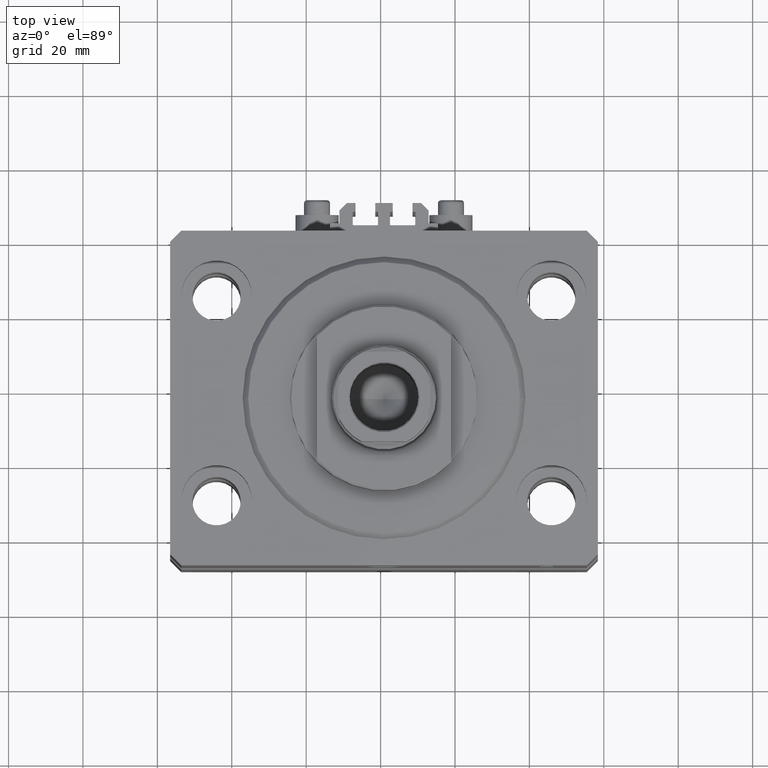
[diagram: clean part render]
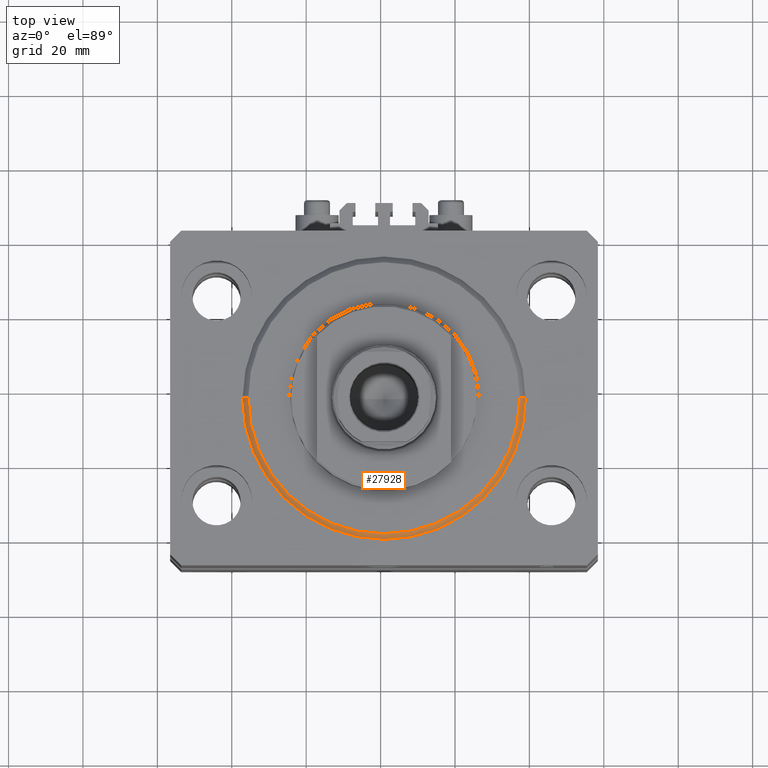
[diagram: same view with one face highlighted and labeled with its STEP entity id]
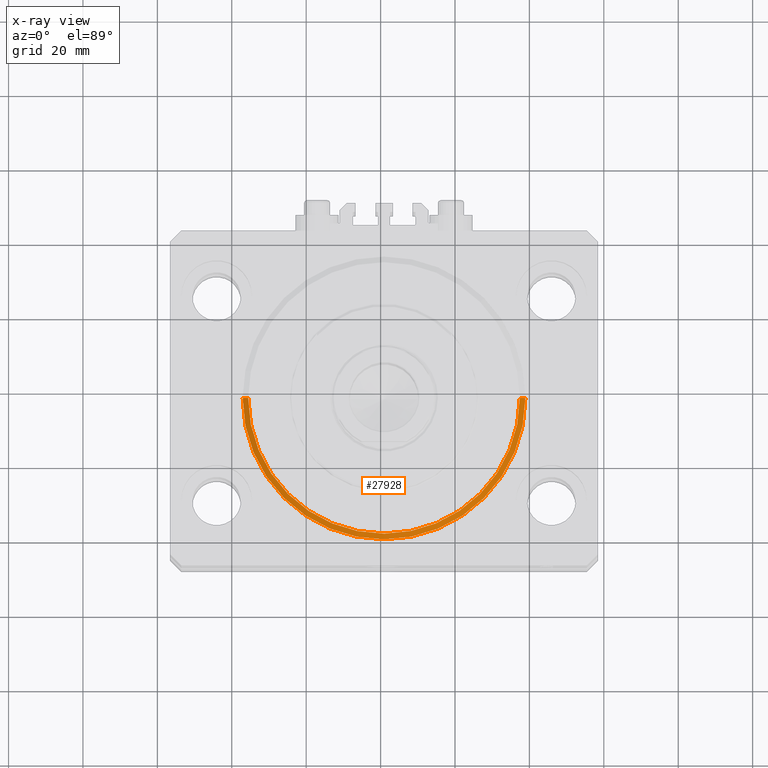
[diagram: x-ray of the same camera — body ghosted, the highlighted face saturated]
A machine part, top view. The second image highlights one B-rep face of the part: STEP entity #27928.
The next image is the same camera in x-ray: the body ghosted, the highlighted face saturated — about 0% of this face is hidden behind the body in this view.
In plain terms, the highlighted conical surface has half-angle 45 deg.
Its self-contained STEP definition (entity closure, byte-faithful):
#2314 = DIRECTION ( 'NONE',  ( -0.000000000000000000, -0.000000000000000000, -1.000000000000000000 ) ) ;
#5760 = DIRECTION ( 'NONE',  ( 1.000000000000000000, 0.000000000000000000, 0.000000000000000000 ) ) ;
#7535 = CARTESIAN_POINT ( 'NONE',  ( 0.000000000000000000, 0.000000000000000000, 1.499999999999994449 ) ) ;
#8592 = ORIENTED_EDGE ( 'NONE', *, *, #19773, .F. ) ;
#9451 = AXIS2_PLACEMENT_3D ( 'NONE', #43415, #2314, #5760 ) ;
#9934 = VERTEX_POINT ( 'NONE', #21363 ) ;
#10494 = DIRECTION ( 'NONE',  ( -0.000000000000000000, -0.000000000000000000, 1.000000000000000000 ) ) ;
#10747 = LINE ( 'NONE', #28473, #37129 ) ;
#11139 = FACE_OUTER_BOUND ( 'NONE', #29608, .T. ) ;
#14198 = DIRECTION ( 'NONE',  ( 0.7071067811865491270, 0.000000000000000000, 0.7071067811865459074 ) ) ;
#15013 = AXIS2_PLACEMENT_3D ( 'NONE', #7535, #10494, #33119 ) ;
#16968 = CARTESIAN_POINT ( 'NONE',  ( 38.00000000000000000, 4.653657836759941941E-15, 1.499999999999994449 ) ) ;
#19539 = VECTOR ( 'NONE', #44784, 1000.000000000000114 ) ;
#19773 = EDGE_CURVE ( 'NONE', #35723, #39286, #33445, .T. ) ;
#20439 = CIRCLE ( 'NONE', #9451, 36.50000000000000000 ) ;
#21363 = CARTESIAN_POINT ( 'NONE',  ( 36.50000000000000000, 0.000000000000000000, 0.000000000000000000 ) ) ;
#24275 = ORIENTED_EDGE ( 'NONE', *, *, #34679, .F. ) ;
#24758 = EDGE_CURVE ( 'NONE', #9934, #35723, #20439, .T. ) ;
#26159 = CARTESIAN_POINT ( 'NONE',  ( 0.000000000000000000, 0.000000000000000000, 1.499999999999994449 ) ) ;
#27550 = CARTESIAN_POINT ( 'NONE',  ( -38.00000000000000000, 0.000000000000000000, 1.499999999999994449 ) ) ;
#27576 = CIRCLE ( 'NONE', #15013, 38.00000000000000000 ) ;
#27928 = ADVANCED_FACE ( 'NONE', ( #11139 ), #48073, .T. ) ;
#28473 = CARTESIAN_POINT ( 'NONE',  ( 38.00000000000000000, 0.000000000000000000, 1.499999999999994449 ) ) ;
#29608 = EDGE_LOOP ( 'NONE', ( #8592, #41885, #42353, #24275 ) ) ;
#31432 = AXIS2_PLACEMENT_3D ( 'NONE', #26159, #41166, #42855 ) ;
#32594 = CARTESIAN_POINT ( 'NONE',  ( -36.50000000000000000, 4.561809326823889791E-15, 0.000000000000000000 ) ) ;
#33119 = DIRECTION ( 'NONE',  ( 1.000000000000000000, 0.000000000000000000, 0.000000000000000000 ) ) ;
#33445 = LINE ( 'NONE', #48485, #19539 ) ;
#34245 = VERTEX_POINT ( 'NONE', #16968 ) ;
#34679 = EDGE_CURVE ( 'NONE', #39286, #34245, #27576, .T. ) ;
#35723 = VERTEX_POINT ( 'NONE', #32594 ) ;
#37129 = VECTOR ( 'NONE', #14198, 1000.000000000000114 ) ;
#37655 = EDGE_CURVE ( 'NONE', #9934, #34245, #10747, .T. ) ;
#39286 = VERTEX_POINT ( 'NONE', #27550 ) ;
#41166 = DIRECTION ( 'NONE',  ( -0.000000000000000000, -0.000000000000000000, 1.000000000000000000 ) ) ;
#41885 = ORIENTED_EDGE ( 'NONE', *, *, #24758, .F. ) ;
#42353 = ORIENTED_EDGE ( 'NONE', *, *, #37655, .T. ) ;
#42855 = DIRECTION ( 'NONE',  ( 1.000000000000000000, 0.000000000000000000, 0.000000000000000000 ) ) ;
#43415 = CARTESIAN_POINT ( 'NONE',  ( 0.000000000000000000, 0.000000000000000000, 0.000000000000000000 ) ) ;
#44784 = DIRECTION ( 'NONE',  ( -0.7071067811865491270, 8.659560562354953812E-17, 0.7071067811865459074 ) ) ;
#48073 = CONICAL_SURFACE ( 'NONE', #31432, 38.00000000000000000, 0.7853981633974506105 ) ;
#48485 = CARTESIAN_POINT ( 'NONE',  ( -38.00000000000000000, 4.653657836759941941E-15, 1.499999999999994449 ) ) ;